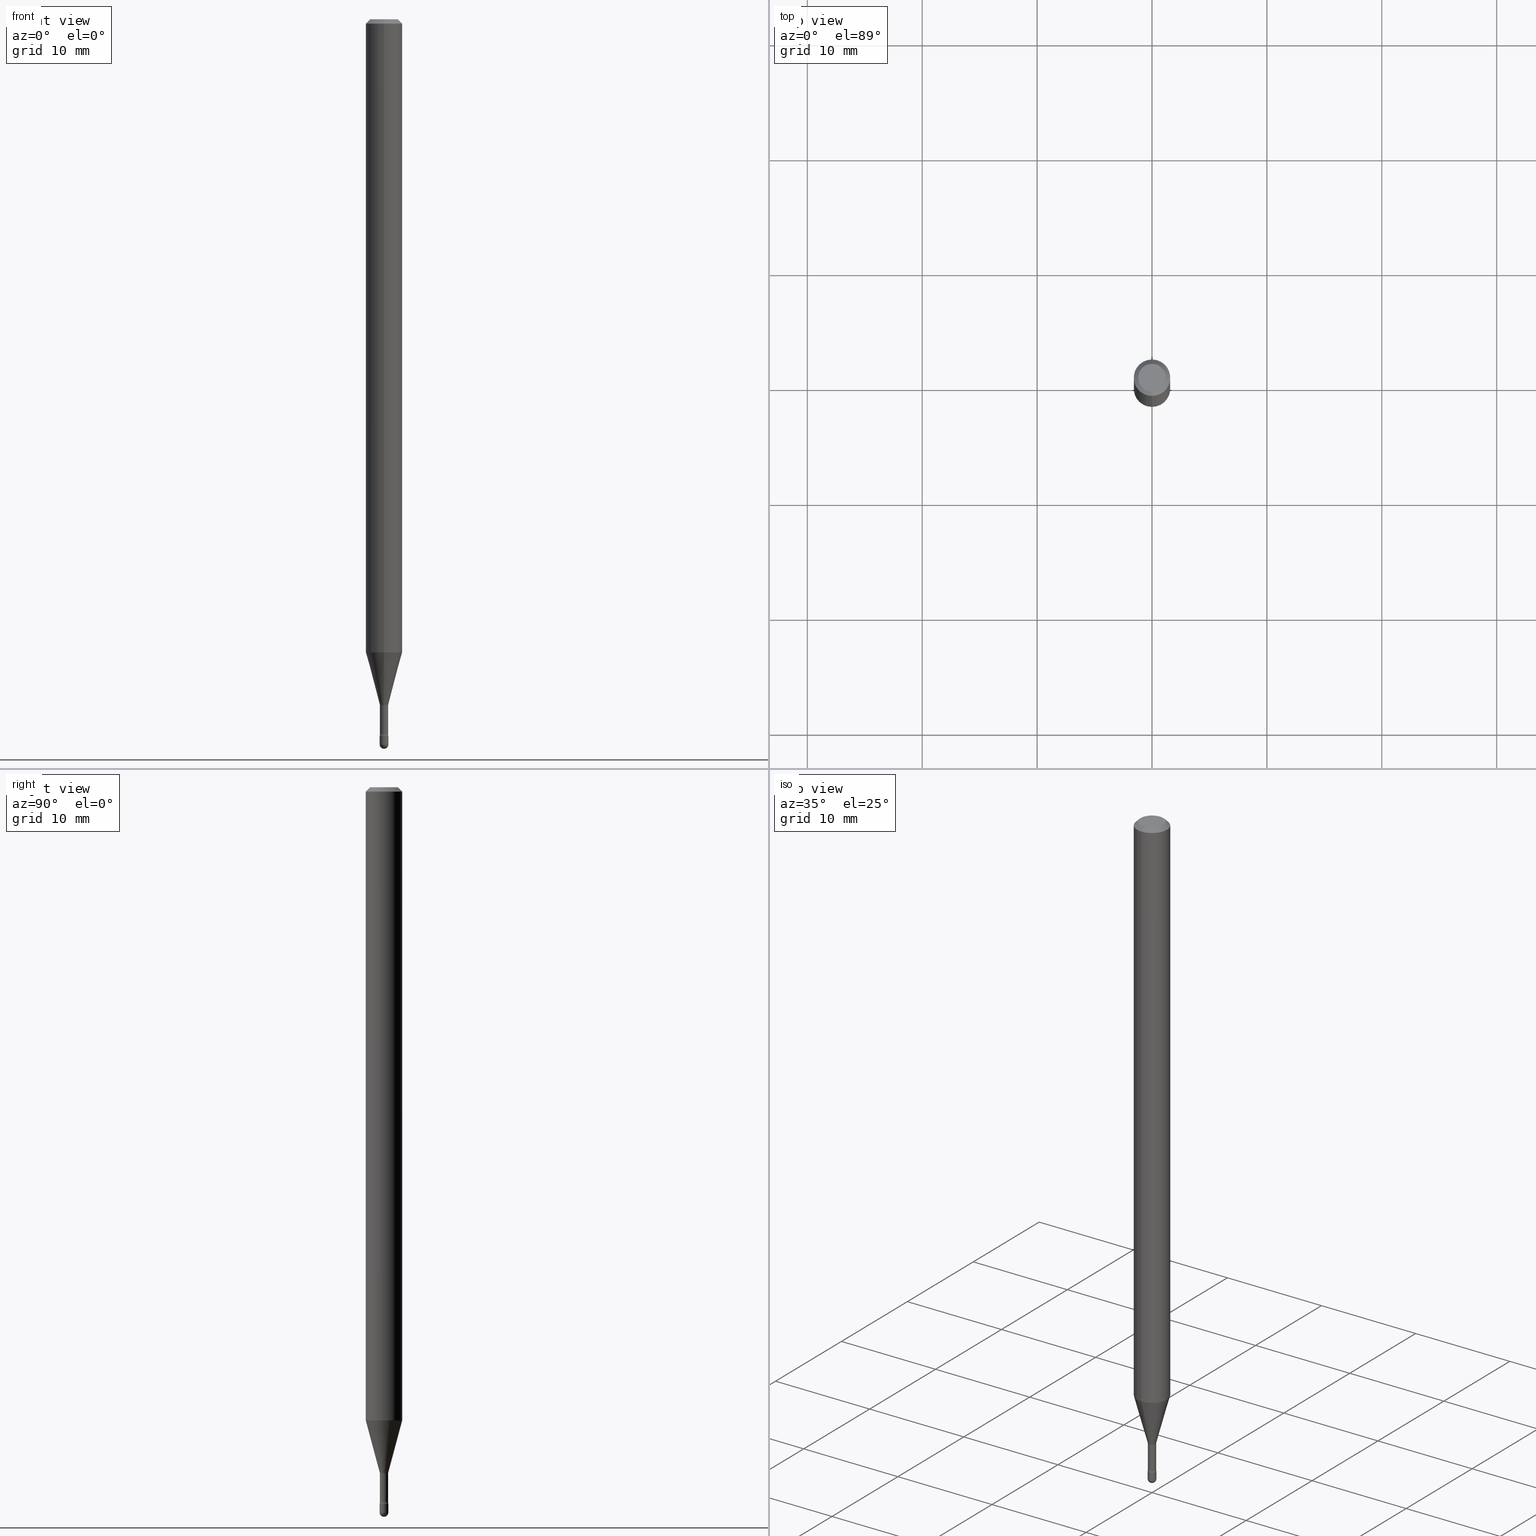
[diagram: canonical four-view strip — front | top / right | iso, engineering-drawing reading convention]
A machine part, canonical four-view strip (front | top / right | iso — engineering-drawing reading convention). The complete STEP part file that produces these views, byte-faithful:
ISO-10303-21;
HEADER;
FILE_DESCRIPTION (( 'STEP AP203' ),
    '1' );
FILE_NAME ('03836.STEP',
    '2024-04-09T20:40:45',
    ( '' ),
    ( '' ),
    'SwSTEP 2.0',
    'SolidWorks 2023',
    '' );
FILE_SCHEMA (( 'CONFIG_CONTROL_DESIGN' ));
ENDSEC;

DATA;
#1 = AXIS2_PLACEMENT_3D ( 'NONE', #218, #58, #466 ) ;
#2 = EDGE_LOOP ( 'NONE', ( #258, #566, #37, #4, #525 ) ) ;
#3 = DIRECTION ( 'NONE',  ( -6.982962677686265922E-15, -1.000000000000000000, 4.370956789862821150E-15 ) ) ;
#4 = ORIENTED_EDGE ( 'NONE', *, *, #523, .T. ) ;
#5 = EDGE_CURVE ( 'NONE', #432, #479, #7, .T. ) ;
#6 = ORIENTED_EDGE ( 'NONE', *, *, #230, .T. ) ;
#7 = CIRCLE ( 'NONE', #320, 0.01500000000000012434 ) ;
#8 = AXIS2_PLACEMENT_3D ( 'NONE', #539, #318, #186 ) ;
#9 = EDGE_LOOP ( 'NONE', ( #176, #226, #521, #394 ) ) ;
#10 = DIMENSIONAL_EXPONENTS ( 1.000000000000000000, 0.000000000000000000, 0.000000000000000000, 0.000000000000000000, 0.000000000000000000, 0.000000000000000000, 0.000000000000000000 ) ;
#11 = CARTESIAN_POINT ( 'NONE',  ( 5.742075338623130299E-29, -8.198481010283205471E-15, -2.348092501787273356 ) ) ;
#12 = DIRECTION ( 'NONE',  ( 1.000000000000000000, -6.982962677686204391E-15, 0.000000000000000000 ) ) ;
#13 = AXIS2_PLACEMENT_3D ( 'NONE', #252, #32, #457 ) ;
#14 = VECTOR ( 'NONE', #87, 39.37007874015748143 ) ;
#15 = DIRECTION ( 'NONE',  ( 7.105427357601001859E-15, 1.000000000000000000, 0.000000000000000000 ) ) ;
#16 = LINE ( 'NONE', #100, #439 ) ;
#17 = PERSON_AND_ORGANIZATION_ROLE ( 'design_owner' ) ;
#18 = EDGE_CURVE ( 'NONE', #41, #344, #147, .T. ) ;
#19 = CARTESIAN_POINT ( 'NONE',  ( 2.739537045417235021E-16, 0.01461111260565578149, -2.348092501787273356 ) ) ;
#20 = CARTESIAN_POINT ( 'NONE',  ( -1.047444401652340571E-16, -0.01500000000000858633, -2.455000000000000071 ) ) ;
#21 = DIRECTION ( 'NONE',  ( -2.445421266092581423E-29, 3.491549418961498749E-15, 1.000000000000000000 ) ) ;
#22 = CIRCLE ( 'NONE', #99, 0.04749999999999999362 ) ;
#23 = DIRECTION ( 'NONE',  ( -6.982962677686265133E-15, -1.000000000000000000, 0.000000000000000000 ) ) ;
#24 = LINE ( 'NONE', #514, #265 ) ;
#25 = APPROVAL_ROLE ( '' ) ;
#26 = DIRECTION ( 'NONE',  ( -2.445421266092581423E-29, 3.491549418961498749E-15, 1.000000000000000000 ) ) ;
#27 = EDGE_CURVE ( 'NONE', #132, #300, #565, .T. ) ;
#28 = FACE_OUTER_BOUND ( 'NONE', #269, .T. ) ;
#29 = FACE_OUTER_BOUND ( 'NONE', #522, .T. ) ;
#30 = CARTESIAN_POINT ( 'NONE',  ( -0.01499999999999999771, -8.517377496578554084E-15, -2.484999999999999432 ) ) ;
#31 = FACE_OUTER_BOUND ( 'NONE', #124, .T. ) ;
#32 = DIRECTION ( 'NONE',  ( -2.445421266092581423E-29, 3.491549418961498749E-15, 1.000000000000000000 ) ) ;
#33 = PERSON_AND_ORGANIZATION ( #271, #50 ) ;
#34 = CIRCLE ( 'NONE', #401, 0.01410000000000000142 ) ;
#35 = TOROIDAL_SURFACE ( 'NONE', #266, 0.02909999999999999740, 0.01500000000000002373 ) ;
#36 = LENGTH_MEASURE_WITH_UNIT ( LENGTH_MEASURE( 0.02539999999999999897 ), #509 );
#37 = ORIENTED_EDGE ( 'NONE', *, *, #282, .T. ) ;
#38 = CARTESIAN_POINT ( 'NONE',  ( 6.003509208257288079E-29, -8.571753823550479726E-15, -2.455000000000000071 ) ) ;
#39 = EDGE_CURVE ( 'NONE', #344, #41, #343, .T. ) ;
#40 = DIRECTION ( 'NONE',  ( 1.000000000000000000, -6.982962677686268288E-15, 0.000000000000000000 ) ) ;
#41 = VERTEX_POINT ( 'NONE', #558 ) ;
#42 = ORIENTED_EDGE ( 'NONE', *, *, #144, .T. ) ;
#43 = ORIENTED_EDGE ( 'NONE', *, *, #225, .F. ) ;
#44 = EDGE_LOOP ( 'NONE', ( #91, #475 ) ) ;
#45 = AXIS2_PLACEMENT_3D ( 'NONE', #97, #435, #355 ) ;
#46 = VERTEX_POINT ( 'NONE', #120 ) ;
#47 = ORIENTED_EDGE ( 'NONE', *, *, #201, .T. ) ;
#48 = ORIENTED_EDGE ( 'NONE', *, *, #18, .T. ) ;
#49 = AXIS2_PLACEMENT_3D ( 'NONE', #229, #325, #235 ) ;
#50 = ORGANIZATION ( 'UNSPECIFIED', 'UNSPECIFIED', '' ) ;
#51 = ORIENTED_EDGE ( 'NONE', *, *, #351, .F. ) ;
#52 = DIRECTION ( 'NONE',  ( 6.982962677686265922E-15, 1.000000000000000000, 0.000000000000000000 ) ) ;
#53 = CARTESIAN_POINT ( 'NONE',  ( 5.742075338623130299E-29, -8.198481010283205471E-15, -2.348092501787273356 ) ) ;
#54 = ADVANCED_FACE ( 'NONE', ( #379 ), #259, .T. ) ;
#55 = LINE ( 'NONE', #493, #433 ) ;
#56 = DIRECTION ( 'NONE',  ( -2.445421266092581423E-29, 3.491549418961498749E-15, 1.000000000000000000 ) ) ;
#57 = AXIS2_PLACEMENT_3D ( 'NONE', #38, #374, #547 ) ;
#58 = DIRECTION ( 'NONE',  ( -1.000000000000000000, 6.982962677686265922E-15, -4.883557194083112340E-29 ) ) ;
#59 = VECTOR ( 'NONE', #206, 39.37007874015748143 ) ;
#60 = CC_DESIGN_PERSON_AND_ORGANIZATION_ASSIGNMENT ( #205, #375, ( #449 ) ) ;
#61 = DIRECTION ( 'NONE',  ( 2.445421266092581142E-29, -3.491549418961498749E-15, -1.000000000000000000 ) ) ;
#62 = ADVANCED_FACE ( 'NONE', ( #299 ), #248, .T. ) ;
#63 = UNCERTAINTY_MEASURE_WITH_UNIT (LENGTH_MEASURE( 1.000000000000000082E-05 ), #294, 'distance_accuracy_value', 'NONE');
#64 = PERSON_AND_ORGANIZATION ( #271, #50 ) ;
#65 = DIRECTION ( 'NONE',  ( -2.445468806185136597E-29, 3.491481338843145583E-15, 1.000000000000000000 ) ) ;
#66 = CARTESIAN_POINT ( 'NONE',  ( 0.000000000000000000, 0.000000000000000000, 0.000000000000000000 ) ) ;
#67 = ADVANCED_FACE ( 'NONE', ( #476 ), #165, .T. ) ;
#68 = DATE_AND_TIME ( #125, #220 ) ;
#69 = DIRECTION ( 'NONE',  ( -6.982962677686265922E-15, -1.000000000000000000, 3.491549418961498749E-15 ) ) ;
#70 = APPROVAL ( #500, 'UNSPECIFIED' ) ;
#71 = DIRECTION ( 'NONE',  ( -2.445421266092581423E-29, 3.491549418961498749E-15, 1.000000000000000000 ) ) ;
#72 = CIRCLE ( 'NONE', #386, 0.01499999999999999771 ) ;
#73 = DIRECTION ( 'NONE',  ( 1.000000000000000000, -6.982962677686265922E-15, 4.876176775795935793E-29 ) ) ;
#74 = APPROVAL ( #210, 'UNSPECIFIED' ) ;
#75 = DIRECTION ( 'NONE',  ( -1.000000000000000000, 6.982962677686265922E-15, -4.883557194083113462E-29 ) ) ;
#76 = CARTESIAN_POINT ( 'NONE',  ( 5.991110947347057702E-29, -8.553718623887254041E-15, -2.449882383367230521 ) ) ;
#77 = CARTESIAN_POINT ( 'NONE',  ( 1.047444401653551842E-16, 0.01499999999999138481, -2.484999999999999432 ) ) ;
#78 = CARTESIAN_POINT ( 'NONE',  ( -1.065814103639546884E-16, -0.01500000000000873551, -2.484999999999999432 ) ) ;
#79 = CARTESIAN_POINT ( 'NONE',  ( 6.076989983370063053E-29, -8.676331127025215102E-15, -2.484999999999999432 ) ) ;
#80 = DIRECTION ( 'NONE',  ( -6.982962677686267499E-15, -1.000000000000000000, 0.000000000000000000 ) ) ;
#81 = DATE_AND_TIME ( #204, #368 ) ;
#82 =( NAMED_UNIT ( * ) SI_UNIT ( $, .STERADIAN. ) SOLID_ANGLE_UNIT ( ) );
#83 = DIRECTION ( 'NONE',  ( -2.445421266092581423E-29, 3.491549418961498749E-15, 1.000000000000000000 ) ) ;
#84 = AXIS2_PLACEMENT_3D ( 'NONE', #530, #184, #314 ) ;
#85 = SHAPE_DEFINITION_REPRESENTATION ( #246, #400 ) ;
#86 = AXIS2_PLACEMENT_3D ( 'NONE', #456, #241, #23 ) ;
#87 = DIRECTION ( 'NONE',  ( 4.937700262164548042E-15, 0.7071067811865451302, -0.7071067811865499042 ) ) ;
#88 = ORIENTED_EDGE ( 'NONE', *, *, #390, .T. ) ;
#89 = DIRECTION ( 'NONE',  ( 1.000000000000000000, -6.982962677686266711E-15, 4.876176775795935793E-29 ) ) ;
#90 = ORIENTED_EDGE ( 'NONE', *, *, #445, .T. ) ;
#91 = ORIENTED_EDGE ( 'NONE', *, *, #349, .T. ) ;
#92 = ORIENTED_EDGE ( 'NONE', *, *, #282, .F. ) ;
#93 = VERTEX_POINT ( 'NONE', #382 ) ;
#94 = EDGE_CURVE ( 'NONE', #385, #300, #195, .T. ) ;
#95 = CIRCLE ( 'NONE', #107, 0.01499999999999999944 ) ;
#96 = CIRCLE ( 'NONE', #143, 0.01499999999999999944 ) ;
#97 = CARTESIAN_POINT ( 'NONE',  ( 0.000000000000000000, 0.000000000000000000, 0.000000000000000000 ) ) ;
#98 = EDGE_LOOP ( 'NONE', ( #178, #486, #135, #384 ) ) ;
#99 = AXIS2_PLACEMENT_3D ( 'NONE', #414, #327, #198 ) ;
#100 = CARTESIAN_POINT ( 'NONE',  ( 1.038181992333310906E-16, 0.01461111260565578149, -2.348092501787273356 ) ) ;
#101 = APPROVAL ( #339, 'UNSPECIFIED' ) ;
#102 = LINE ( 'NONE', #495, #431 ) ;
#103 = DESIGN_CONTEXT ( 'detailed design', #373, 'design' ) ;
#104 = EDGE_CURVE ( 'NONE', #262, #515, #34, .T. ) ;
#105 = DIRECTION ( 'NONE',  ( 1.000000000000000000, -7.105427357601001070E-15, 4.926316342283072685E-29 ) ) ;
#106 = CLOSED_SHELL ( 'NONE', ( #263, #519, #54, #404, #67 ) ) ;
#107 = AXIS2_PLACEMENT_3D ( 'NONE', #232, #358, #362 ) ;
#108 = AXIS2_PLACEMENT_3D ( 'NONE', #376, #26, #337 ) ;
#109 = DIRECTION ( 'NONE',  ( -1.000000000000000000, 6.982962677686265922E-15, -4.883557194083113462E-29 ) ) ;
#110 = DIRECTION ( 'NONE',  ( 2.445421266092581423E-29, -3.491549418961498749E-15, -1.000000000000000000 ) ) ;
#111 = DIRECTION ( 'NONE',  ( -6.982962677686265922E-15, -1.000000000000000000, 3.491549418961497960E-15 ) ) ;
#112 = CARTESIAN_POINT ( 'NONE',  ( 1.047444401653540256E-16, 0.01499999999999142818, -2.455000000000000071 ) ) ;
#113 = DIRECTION ( 'NONE',  ( 2.445421266092581423E-29, -3.491549418961498749E-15, -1.000000000000000000 ) ) ;
#114 = AXIS2_PLACEMENT_3D ( 'NONE', #398, #56, #145 ) ;
#115 = CARTESIAN_POINT ( 'NONE',  ( 6.003625919184510659E-29, -8.571586686859923311E-15, -2.455000000000000071 ) ) ;
#116 = TOROIDAL_SURFACE ( 'NONE', #197, 0.02910000000000001474, 0.01500000000000002373 ) ;
#117 = COORDINATED_UNIVERSAL_TIME_OFFSET ( 5, 0, .BEHIND. ) ;
#118 = CARTESIAN_POINT ( 'NONE',  ( 4.364351673553919652E-16, 0.06249999999999995143, -0.01500000000000030129 ) ) ;
#119 = DIRECTION ( 'NONE',  ( 1.000000000000000000, -6.982962677686266711E-15, 4.876176775795935793E-29 ) ) ;
#120 = CARTESIAN_POINT ( 'NONE',  ( -4.364351673553385199E-16, -0.06250000000000757727, -2.169368740913666826 ) ) ;
#121 = CALENDAR_DATE ( 2024, 9, 4 ) ;
#122 = FACE_OUTER_BOUND ( 'NONE', #347, .T. ) ;
#123 = FACE_OUTER_BOUND ( 'NONE', #224, .T. ) ;
#124 = EDGE_LOOP ( 'NONE', ( #264, #561, #222, #564 ) ) ;
#125 = CALENDAR_DATE ( 2024, 9, 4 ) ;
#126 = EDGE_CURVE ( 'NONE', #313, #515, #499, .T. ) ;
#127 = ORIENTED_EDGE ( 'NONE', *, *, #425, .F. ) ;
#128 = CARTESIAN_POINT ( 'NONE',  ( 0.01499999999999999944, -8.676331127025216680E-15, -2.455000000000000071 ) ) ;
#129 = AXIS2_PLACEMENT_3D ( 'NONE', #444, #109, #52 ) ;
#130 = ORIENTED_EDGE ( 'NONE', *, *, #168, .T. ) ;
#131 = DIRECTION ( 'NONE',  ( 6.982962677686265922E-15, 1.000000000000000000, 0.000000000000000000 ) ) ;
#132 = VERTEX_POINT ( 'NONE', #472 ) ;
#133 = VERTEX_POINT ( 'NONE', #128 ) ;
#134 = ORIENTED_EDGE ( 'NONE', *, *, #27, .F. ) ;
#135 = ORIENTED_EDGE ( 'NONE', *, *, #94, .T. ) ;
#136 = ORIENTED_EDGE ( 'NONE', *, *, #201, .F. ) ;
#137 = AXIS2_PLACEMENT_3D ( 'NONE', #76, #158, #453 ) ;
#138 = LOCAL_TIME ( 16, 40, 45.00000000000000000, #296 ) ;
#139 = ORIENTED_EDGE ( 'NONE', *, *, #18, .F. ) ;
#140 = CLOSED_SHELL ( 'NONE', ( #508, #331, #260, #469, #488, #304, #470, #62, #290, #395, #529, #423, #545, #207 ) ) ;
#141 = CIRCLE ( 'NONE', #353, 0.06250000000000000000 ) ;
#142 = DIRECTION ( 'NONE',  ( -2.445468806185136597E-29, 3.491481338843145583E-15, 1.000000000000000000 ) ) ;
#143 = AXIS2_PLACEMENT_3D ( 'NONE', #446, #501, #40 ) ;
#144 = EDGE_CURVE ( 'NONE', #41, #46, #24, .T. ) ;
#145 = DIRECTION ( 'NONE',  ( -6.982962677686265133E-15, -1.000000000000000000, 3.491549418961499932E-15 ) ) ;
#146 = DIRECTION ( 'NONE',  ( 1.839019923739599526E-15, 0.2588190451025248473, 0.9659258262890673130 ) ) ;
#147 = CIRCLE ( 'NONE', #84, 0.01461111260566397979 ) ;
#148 = AXIS2_PLACEMENT_3D ( 'NONE', #532, #105, #15 ) ;
#149 = APPROVAL_ROLE ( '' ) ;
#150 = DIRECTION ( 'NONE',  ( -2.445468806185136877E-29, 3.491481338843145188E-15, 1.000000000000000000 ) ) ;
#151 = EDGE_CURVE ( 'NONE', #350, #441, #517, .T. ) ;
#152 = CARTESIAN_POINT ( 'NONE',  ( -4.364351673553916201E-16, -0.06250000000000000000, 6.962952375763397104E-16 ) ) ;
#153 = PERSON_AND_ORGANIZATION ( #271, #50 ) ;
#154 = DIRECTION ( 'NONE',  ( -2.445421266092581423E-29, 3.491549418961498749E-15, 1.000000000000000000 ) ) ;
#155 = EDGE_CURVE ( 'NONE', #515, #262, #272, .T. ) ;
#156 = DIRECTION ( 'NONE',  ( -1.000000000000000000, 6.982962677686265922E-15, -4.883557194083112340E-29 ) ) ;
#157 = DATE_AND_TIME ( #463, #440 ) ;
#158 = DIRECTION ( 'NONE',  ( -2.445421266092581423E-29, 3.491549418961498749E-15, 1.000000000000000000 ) ) ;
#159 = CIRCLE ( 'NONE', #474, 0.06250000000000000000 ) ;
#160 = CARTESIAN_POINT ( 'NONE',  ( 5.751680975676666487E-29, -8.211876079859469508E-15, -2.351974787463811278 ) ) ;
#161 = AXIS2_PLACEMENT_3D ( 'NONE', #412, #163, #254 ) ;
#162 = PERSON_AND_ORGANIZATION ( #271, #50 ) ;
#163 = DIRECTION ( 'NONE',  ( -2.445421266092581423E-29, 3.491549418961498749E-15, 1.000000000000000000 ) ) ;
#164 = CARTESIAN_POINT ( 'NONE',  ( 4.440892098500625669E-16, 0.06250000000000000000, 2.598515602061524161E-16 ) ) ;
#165 = CYLINDRICAL_SURFACE ( 'NONE', #310, 0.01499999999999999771 ) ;
#166 = PERSON_AND_ORGANIZATION ( #271, #50 ) ;
#167 = EDGE_CURVE ( 'NONE', #288, #93, #22, .T. ) ;
#168 = EDGE_CURVE ( 'NONE', #344, #515, #181, .T. ) ;
#169 = VERTEX_POINT ( 'NONE', #77 ) ;
#170 = CARTESIAN_POINT ( 'NONE',  ( 1.001865257421740747E-16, 0.01409999999999999448, 4.288425520838889545E-16 ) ) ;
#171 = ORIENTED_EDGE ( 'NONE', *, *, #94, .F. ) ;
#172 = AXIS2_PLACEMENT_3D ( 'NONE', #208, #257, #243 ) ;
#173 = PRODUCT_DEFINITION ( 'UNKNOWN', '', #449, #103 ) ;
#174 = CIRCLE ( 'NONE', #57, 0.01499999999999999944 ) ;
#175 = EDGE_LOOP ( 'NONE', ( #261, #482 ) ) ;
#176 = ORIENTED_EDGE ( 'NONE', *, *, #126, .F. ) ;
#177 = VERTEX_POINT ( 'NONE', #369 ) ;
#178 = ORIENTED_EDGE ( 'NONE', *, *, #390, .F. ) ;
#179 = EDGE_CURVE ( 'NONE', #46, #350, #424, .T. ) ;
#180 = EDGE_LOOP ( 'NONE', ( #270, #6, #548, #471 ) ) ;
#181 = CIRCLE ( 'NONE', #172, 0.01500000000000001853 ) ;
#182 = CIRCLE ( 'NONE', #108, 0.01409999999999998928 ) ;
#183 = ORIENTED_EDGE ( 'NONE', *, *, #179, .T. ) ;
#184 = DIRECTION ( 'NONE',  ( -2.445421266092581423E-29, 3.491549418961498749E-15, 1.000000000000000000 ) ) ;
#185 = EDGE_LOOP ( 'NONE', ( #305, #487, #42, #520 ) ) ;
#186 = DIRECTION ( 'NONE',  ( 1.000000000000000000, -6.982962677686204391E-15, 0.000000000000000000 ) ) ;
#187 = CIRCLE ( 'NONE', #8, 0.01499999999999999771 ) ;
#188 = CARTESIAN_POINT ( 'NONE',  ( 3.668131899138892453E-31, -5.237324128442276818E-17, -0.01500000000000008271 ) ) ;
#189 = VECTOR ( 'NONE', #213, 39.37007874015748143 ) ;
#190 = EDGE_CURVE ( 'NONE', #300, #132, #174, .T. ) ;
#191 = CARTESIAN_POINT ( 'NONE',  ( 4.440892098501160615E-16, 0.06249999999999995837, -0.01500000000000030129 ) ) ;
#192 = FACE_OUTER_BOUND ( 'NONE', #98, .T. ) ;
#193 = CARTESIAN_POINT ( 'NONE',  ( 6.003509208257288079E-29, -8.571753823550479726E-15, -2.455000000000000071 ) ) ;
#194 = DIRECTION ( 'NONE',  ( 6.982962677686265922E-15, 1.000000000000000000, -3.491549418961498749E-15 ) ) ;
#195 = CIRCLE ( 'NONE', #490, 0.01500000000000001853 ) ;
#196 = DIRECTION ( 'NONE',  ( 1.000000000000000000, -6.982962677686204391E-15, 0.000000000000000000 ) ) ;
#197 = AXIS2_PLACEMENT_3D ( 'NONE', #367, #365, #281 ) ;
#198 = DIRECTION ( 'NONE',  ( -6.982962677686266711E-15, -1.000000000000000000, 3.491549418961498749E-15 ) ) ;
#199 = DATE_TIME_ROLE ( 'creation_date' ) ;
#200 = DIRECTION ( 'NONE',  ( -6.982962677686265922E-15, -1.000000000000000000, 3.491549418961497960E-15 ) ) ;
#201 = EDGE_CURVE ( 'NONE', #441, #350, #159, .T. ) ;
#202 = CARTESIAN_POINT ( 'NONE',  ( 2.023207162631325766E-45, -2.889366080516310070E-31, -8.274379826592361191E-17 ) ) ;
#203 = DIRECTION ( 'NONE',  ( -2.445421266092581423E-29, 3.491549418961498749E-15, 1.000000000000000000 ) ) ;
#204 = CALENDAR_DATE ( 2024, 9, 4 ) ;
#205 = PERSON_AND_ORGANIZATION ( #271, #50 ) ;
#206 = DIRECTION ( 'NONE',  ( -2.445468806185136877E-29, 3.491481338843145188E-15, 1.000000000000000000 ) ) ;
#207 = ADVANCED_FACE ( 'NONE', ( #29 ), #410, .F. ) ;
#208 = CARTESIAN_POINT ( 'NONE',  ( 2.067679361062465992E-16, 0.02909999999999178522, -2.351974787463811278 ) ) ;
#209 = CIRCLE ( 'NONE', #323, 0.01499999999999999771 ) ;
#210 = APPROVAL_STATUS ( 'not_yet_approved' ) ;
#211 = ORIENTED_EDGE ( 'NONE', *, *, #497, .F. ) ;
#212 = CARTESIAN_POINT ( 'NONE',  ( -1.169113584055446105E-44, 1.669184350826100908E-30, 4.780733988912460139E-16 ) ) ;
#213 = DIRECTION ( 'NONE',  ( -4.851104656540964275E-15, -0.7071067811865500152, -0.7071067811865450192 ) ) ;
#214 = ORIENTED_EDGE ( 'NONE', *, *, #437, .T. ) ;
#215 = EDGE_CURVE ( 'NONE', #177, #46, #377, .T. ) ;
#216 = ORIENTED_EDGE ( 'NONE', *, *, #27, .T. ) ;
#217 = AXIS2_PLACEMENT_3D ( 'NONE', #193, #366, #443 ) ;
#218 = CARTESIAN_POINT ( 'NONE',  ( -2.032042139206128241E-16, -0.02910000000000820958, -2.351974787463811278 ) ) ;
#219 = VECTOR ( 'NONE', #341, 39.37007874015748143 ) ;
#220 = LOCAL_TIME ( 16, 40, 45.00000000000000000, #511 ) ;
#221 = ORIENTED_EDGE ( 'NONE', *, *, #497, .T. ) ;
#222 = ORIENTED_EDGE ( 'NONE', *, *, #104, .F. ) ;
#223 = ORIENTED_EDGE ( 'NONE', *, *, #312, .F. ) ;
#224 = EDGE_LOOP ( 'NONE', ( #356, #214, #484, #392, #90 ) ) ;
#225 = EDGE_CURVE ( 'NONE', #41, #262, #240, .T. ) ;
#226 = ORIENTED_EDGE ( 'NONE', *, *, #399, .T. ) ;
#227 = DIRECTION ( 'NONE',  ( 6.982962677686265922E-15, 1.000000000000000000, 0.000000000000000000 ) ) ;
#228 = DIRECTION ( 'NONE',  ( -2.445421266092581423E-29, 3.491549418961498749E-15, 1.000000000000000000 ) ) ;
#229 = CARTESIAN_POINT ( 'NONE',  ( 5.990994479711803696E-29, -8.553885412169865933E-15, -2.449882383367230521 ) ) ;
#230 = EDGE_CURVE ( 'NONE', #177, #441, #557, .T. ) ;
#231 = VECTOR ( 'NONE', #546, 39.37007874015748143 ) ;
#232 = CARTESIAN_POINT ( 'NONE',  ( 6.003625919184510659E-29, -8.571586686859923311E-15, -2.455000000000000071 ) ) ;
#233 = CONICAL_SURFACE ( 'NONE', #555, 0.01461111260566397979, 0.2617993877991501295 ) ;
#234 = CARTESIAN_POINT ( 'NONE',  ( 6.076989983370064174E-29, -8.676331127025216680E-15, -2.484999999999999876 ) ) ;
#235 = DIRECTION ( 'NONE',  ( -6.982962677686265922E-15, -1.000000000000000000, 0.000000000000000000 ) ) ;
#236 = EDGE_CURVE ( 'NONE', #46, #177, #141, .T. ) ;
#237 = CARTESIAN_POINT ( 'NONE',  ( 3.668131899138892453E-31, -5.237324128442276818E-17, -0.01500000000000008271 ) ) ;
#238 = COORDINATED_UNIVERSAL_TIME_OFFSET ( 5, 0, .BEHIND. ) ;
#239 = CARTESIAN_POINT ( 'NONE',  ( -1.169113584055446105E-44, 1.669184350826100908E-30, 4.780733988912460139E-16 ) ) ;
#240 = CIRCLE ( 'NONE', #1, 0.01500000000000001853 ) ;
#241 = DIRECTION ( 'NONE',  ( -2.445421266092581423E-29, 3.491549418961498749E-15, 1.000000000000000000 ) ) ;
#242 = CONICAL_SURFACE ( 'NONE', #485, 0.06250000000000000000, 0.7853981633974483900 ) ;
#243 = DIRECTION ( 'NONE',  ( 7.105427357601005014E-15, 1.000000000000000000, 0.000000000000000000 ) ) ;
#244 = FACE_OUTER_BOUND ( 'NONE', #180, .T. ) ;
#245 = CARTESIAN_POINT ( 'NONE',  ( 5.305020453026768105E-29, -7.574458166850352886E-15, -2.169368740913666826 ) ) ;
#246 = PRODUCT_DEFINITION_SHAPE ( 'NONE', 'NONE',  #173 ) ;
#247 = CC_DESIGN_PERSON_AND_ORGANIZATION_ASSIGNMENT ( #289, #249, ( #449 ) ) ;
#248 = CYLINDRICAL_SURFACE ( 'NONE', #315, 0.06250000000000000000 ) ;
#249 = PERSON_AND_ORGANIZATION_ROLE ( 'creator' ) ;
#250 = DIRECTION ( 'NONE',  ( -2.445421266092581423E-29, 3.491549418961498749E-15, 1.000000000000000000 ) ) ;
#251 = FACE_OUTER_BOUND ( 'NONE', #436, .T. ) ;
#252 = CARTESIAN_POINT ( 'NONE',  ( 5.751569162577582727E-29, -8.212036202581364212E-15, -2.351974787463811278 ) ) ;
#253 = PERSON_AND_ORGANIZATION_ROLE ( 'classification_officer' ) ;
#254 = DIRECTION ( 'NONE',  ( -6.982962677686265133E-15, -1.000000000000000000, 3.491549418961499932E-15 ) ) ;
#255 = ORIENTED_EDGE ( 'NONE', *, *, #215, .T. ) ;
#256 = AXIS2_PLACEMENT_3D ( 'NONE', #319, #496, #227 ) ;
#257 = DIRECTION ( 'NONE',  ( 1.000000000000000000, -7.105427357601001070E-15, 4.926316342283072685E-29 ) ) ;
#258 = ORIENTED_EDGE ( 'NONE', *, *, #437, .F. ) ;
#259 = PLANE ( 'NONE',  #345 ) ;
#260 = ADVANCED_FACE ( 'NONE', ( #28 ), #503, .F. ) ;
#261 = ORIENTED_EDGE ( 'NONE', *, *, #312, .T. ) ;
#262 = VERTEX_POINT ( 'NONE', #510 ) ;
#263 = ADVANCED_FACE ( 'NONE', ( #123 ), #335, .T. ) ;
#264 = ORIENTED_EDGE ( 'NONE', *, *, #562, .T. ) ;
#265 = VECTOR ( 'NONE', #507, 39.37007874015749564 ) ;
#266 = AXIS2_PLACEMENT_3D ( 'NONE', #559, #329, #505 ) ;
#267 = ORIENTED_EDGE ( 'NONE', *, *, #104, .T. ) ;
#268 = ORIENTED_EDGE ( 'NONE', *, *, #39, .F. ) ;
#269 = EDGE_LOOP ( 'NONE', ( #477, #88, #216, #171 ) ) ;
#270 = ORIENTED_EDGE ( 'NONE', *, *, #236, .T. ) ;
#271 = PERSON ( 'UNSPECIFIED', 'UNSPECIFIED', 'UNSPECIFIED', ('UNSPECIFIED'), ('UNSPECIFIED'), ('UNSPECIFIED') ) ;
#272 = CIRCLE ( 'NONE', #13, 0.01410000000000000142 ) ;
#273 = CC_DESIGN_APPROVAL ( #74, ( #378 ) ) ;
#274 = ORIENTED_EDGE ( 'NONE', *, *, #225, .T. ) ;
#275 = CARTESIAN_POINT ( 'NONE',  ( 6.076989983370063053E-29, -8.676331127025215102E-15, -2.484999999999999432 ) ) ;
#276 = DIRECTION ( 'NONE',  ( 1.000000000000000000, -6.982962677686204391E-15, 0.000000000000000000 ) ) ;
#277 = AXIS2_PLACEMENT_3D ( 'NONE', #202, #154, #287 ) ;
#278 = PLANE ( 'NONE',  #540 ) ;
#279 = AXIS2_PLACEMENT_3D ( 'NONE', #239, #250, #200 ) ;
#280 = ORIENTED_EDGE ( 'NONE', *, *, #144, .F. ) ;
#281 = DIRECTION ( 'NONE',  ( -6.982962677686265922E-15, -1.000000000000000000, 3.491549418961498749E-15 ) ) ;
#282 = EDGE_CURVE ( 'NONE', #479, #428, #72, .T. ) ;
#283 = COORDINATED_UNIVERSAL_TIME_OFFSET ( 5, 0, .BEHIND. ) ;
#284 = DIRECTION ( 'NONE',  ( 6.982962677686265922E-15, 1.000000000000000000, -3.483106191921935554E-15 ) ) ;
#285 = FACE_OUTER_BOUND ( 'NONE', #354, .T. ) ;
#286 = CARTESIAN_POINT ( 'NONE',  ( 6.076989983370064174E-29, -8.676331127025216680E-15, -2.484999999999999876 ) ) ;
#287 = DIRECTION ( 'NONE',  ( -6.982962677686266711E-15, -1.000000000000000000, 3.491549418961498749E-15 ) ) ;
#288 = VERTEX_POINT ( 'NONE', #413 ) ;
#289 = PERSON_AND_ORGANIZATION ( #271, #50 ) ;
#290 = ADVANCED_FACE ( 'NONE', ( #251 ), #333, .T. ) ;
#291 = DIRECTION ( 'NONE',  ( -2.445421266092581142E-29, 3.491549418961498749E-15, 1.000000000000000000 ) ) ;
#292 = DIRECTION ( 'NONE',  ( -6.982962677686265133E-15, -1.000000000000000000, 0.000000000000000000 ) ) ;
#293 = DATE_AND_TIME ( #121, #138 ) ;
#294 =( CONVERSION_BASED_UNIT ( 'INCH', #36 ) LENGTH_UNIT ( ) NAMED_UNIT ( #10 ) );
#295 = CARTESIAN_POINT ( 'NONE',  ( 0.000000000000000000, 0.000000000000000000, 0.000000000000000000 ) ) ;
#296 = COORDINATED_UNIVERSAL_TIME_OFFSET ( 5, 0, .BEHIND. ) ;
#297 = ORIENTED_EDGE ( 'NONE', *, *, #230, .F. ) ;
#298 = CIRCLE ( 'NONE', #49, 0.01409999999999998928 ) ;
#299 = FACE_OUTER_BOUND ( 'NONE', #447, .T. ) ;
#300 = VERTEX_POINT ( 'NONE', #20 ) ;
#301 = MECHANICAL_CONTEXT ( 'NONE', #309, 'mechanical' ) ;
#302 = VERTEX_POINT ( 'NONE', #326 ) ;
#303 = ORIENTED_EDGE ( 'NONE', *, *, #236, .F. ) ;
#304 = ADVANCED_FACE ( 'NONE', ( #285 ), #483, .T. ) ;
#305 = ORIENTED_EDGE ( 'NONE', *, *, #405, .F. ) ;
#306 = ORIENTED_EDGE ( 'NONE', *, *, #167, .F. ) ;
#307 = CC_DESIGN_PERSON_AND_ORGANIZATION_ASSIGNMENT ( #64, #17, ( #442 ) ) ;
#308 = ORIENTED_EDGE ( 'NONE', *, *, #5, .T. ) ;
#309 = APPLICATION_CONTEXT ( 'configuration controlled 3d designs of mechanical parts and assemblies' ) ;
#310 = AXIS2_PLACEMENT_3D ( 'NONE', #295, #338, #89 ) ;
#311 = APPROVAL_PERSON_ORGANIZATION ( #166, #70, #149 ) ;
#312 = EDGE_CURVE ( 'NONE', #93, #288, #448, .T. ) ;
#313 = VERTEX_POINT ( 'NONE', #461 ) ;
#314 = DIRECTION ( 'NONE',  ( -6.982962677686265133E-15, -1.000000000000000000, 0.000000000000000000 ) ) ;
#315 = AXIS2_PLACEMENT_3D ( 'NONE', #212, #417, #111 ) ;
#316 = CIRCLE ( 'NONE', #491, 0.01499999999999999771 ) ;
#317 = DIRECTION ( 'NONE',  ( -2.445421266092581423E-29, 3.491549418961498749E-15, 1.000000000000000000 ) ) ;
#318 = DIRECTION ( 'NONE',  ( -2.445468806185136597E-29, 3.491481338843145583E-15, 1.000000000000000000 ) ) ;
#319 = CARTESIAN_POINT ( 'NONE',  ( 6.076989983370064174E-29, -8.676331127025216680E-15, -2.484999999999999876 ) ) ;
#320 = AXIS2_PLACEMENT_3D ( 'NONE', #234, #451, #408 ) ;
#321 = AXIS2_PLACEMENT_3D ( 'NONE', #542, #83, #467 ) ;
#322 = CARTESIAN_POINT ( 'NONE',  ( 0.01499999999999999771, -8.728703347107861787E-15, -2.484999999999999432 ) ) ;
#323 = AXIS2_PLACEMENT_3D ( 'NONE', #275, #142, #12 ) ;
#324 = APPROVAL_DATE_TIME ( #157, #70 ) ;
#325 = DIRECTION ( 'NONE',  ( -2.445421266092581423E-29, 3.491549418961498749E-15, 1.000000000000000000 ) ) ;
#326 = CARTESIAN_POINT ( 'NONE',  ( -0.01500000000000000291, -8.517377496578554084E-15, -2.455000000000000071 ) ) ;
#327 = DIRECTION ( 'NONE',  ( -2.445421266092581423E-29, 3.491549418961498749E-15, 1.000000000000000000 ) ) ;
#328 = APPROVAL_DATE_TIME ( #81, #101 ) ;
#329 = DIRECTION ( 'NONE',  ( -2.445421266092581423E-29, 3.491549418961498749E-15, 1.000000000000000000 ) ) ;
#330 = CARTESIAN_POINT ( 'NONE',  ( 3.668131899138892453E-31, -5.237324128442276818E-17, -0.01500000000000008271 ) ) ;
#331 = ADVANCED_FACE ( 'NONE', ( #31 ), #416, .T. ) ;
#332 = PERSON_AND_ORGANIZATION ( #271, #50 ) ;
#333 = CONICAL_SURFACE ( 'NONE', #527, 0.06250000000000000000, 0.7853981633974483900 ) ;
#334 = APPROVAL_PERSON_ORGANIZATION ( #153, #101, #25 ) ;
#335 = CYLINDRICAL_SURFACE ( 'NONE', #458, 0.01499999999999999771 ) ;
#336 = CARTESIAN_POINT ( 'NONE',  ( -2.032042139206105562E-16, -0.02910000000000856693, -2.449882383367230521 ) ) ;
#337 = DIRECTION ( 'NONE',  ( -6.982962677686265922E-15, -1.000000000000000000, 0.000000000000000000 ) ) ;
#338 = DIRECTION ( 'NONE',  ( -2.445468806185136597E-29, 3.491481338843145583E-15, 1.000000000000000000 ) ) ;
#339 = APPROVAL_STATUS ( 'not_yet_approved' ) ;
#340 = ORIENTED_EDGE ( 'NONE', *, *, #5, .F. ) ;
#341 = DIRECTION ( 'NONE',  ( -2.445421266092581423E-29, 3.491549418961498749E-15, 1.000000000000000000 ) ) ;
#342 = LINE ( 'NONE', #460, #59 ) ;
#343 = CIRCLE ( 'NONE', #554, 0.01461111260566397979 ) ;
#344 = VERTEX_POINT ( 'NONE', #19 ) ;
#345 = AXIS2_PLACEMENT_3D ( 'NONE', #115, #560, #73 ) ;
#346 = LOCAL_TIME ( 16, 40, 45.00000000000000000, #238 ) ;
#347 = EDGE_LOOP ( 'NONE', ( #268, #130, #526, #43 ) ) ;
#348 = ORIENTED_EDGE ( 'NONE', *, *, #533, .T. ) ;
#349 = EDGE_CURVE ( 'NONE', #133, #302, #95, .T. ) ;
#350 = VERTEX_POINT ( 'NONE', #538 ) ;
#351 = EDGE_CURVE ( 'NONE', #432, #169, #422, .T. ) ;
#352 = ORIENTED_EDGE ( 'NONE', *, *, #533, .F. ) ;
#353 = AXIS2_PLACEMENT_3D ( 'NONE', #245, #71, #551 ) ;
#354 = EDGE_LOOP ( 'NONE', ( #48, #381, #303, #280 ) ) ;
#355 = DIRECTION ( 'NONE',  ( 1.000000000000000000, 0.000000000000000000, 0.000000000000000000 ) ) ;
#356 = ORIENTED_EDGE ( 'NONE', *, *, #425, .T. ) ;
#357 = EDGE_LOOP ( 'NONE', ( #492, #134 ) ) ;
#358 = DIRECTION ( 'NONE',  ( -2.445468806185136597E-29, 3.491481338843145583E-15, 1.000000000000000000 ) ) ;
#359 = AXIS2_PLACEMENT_3D ( 'NONE', #552, #481, #3 ) ;
#360 = AXIS2_PLACEMENT_3D ( 'NONE', #286, #75, #131 ) ;
#361 = DIRECTION ( 'NONE',  ( -2.445421266092581423E-29, 3.491549418961498749E-15, 1.000000000000000000 ) ) ;
#362 = DIRECTION ( 'NONE',  ( 1.000000000000000000, -6.982962677686268288E-15, 0.000000000000000000 ) ) ;
#363 = EDGE_CURVE ( 'NONE', #385, #262, #102, .T. ) ;
#364 = EDGE_CURVE ( 'NONE', #513, #479, #187, .T. ) ;
#365 = DIRECTION ( 'NONE',  ( -2.445421266092581423E-29, 3.491549418961498749E-15, 1.000000000000000000 ) ) ;
#366 = DIRECTION ( 'NONE',  ( -2.445421266092581423E-29, 3.491549418961498749E-15, 1.000000000000000000 ) ) ;
#367 = CARTESIAN_POINT ( 'NONE',  ( 5.991110947347057702E-29, -8.553718623887254041E-15, -2.449882383367230521 ) ) ;
#368 = LOCAL_TIME ( 16, 40, 45.00000000000000000, #117 ) ;
#369 = CARTESIAN_POINT ( 'NONE',  ( 4.440892098501154699E-16, 0.06249999999999240885, -2.169368740913667271 ) ) ;
#370 = SPHERICAL_SURFACE ( 'NONE', #360, 0.01500000000000012434 ) ;
#371 = PRODUCT_RELATED_PRODUCT_CATEGORY ( 'detail', '', ( #442 ) ) ;
#372 = DIRECTION ( 'NONE',  ( -2.445468806185136597E-29, 3.491481338843145583E-15, 1.000000000000000000 ) ) ;
#373 = APPLICATION_CONTEXT ( 'configuration controlled 3d designs of mechanical parts and assemblies' ) ;
#374 = DIRECTION ( 'NONE',  ( -2.445421266092581423E-29, 3.491549418961498749E-15, 1.000000000000000000 ) ) ;
#375 = PERSON_AND_ORGANIZATION_ROLE ( 'design_supplier' ) ;
#376 = CARTESIAN_POINT ( 'NONE',  ( 5.990994479711803696E-29, -8.553885412169865933E-15, -2.449882383367230521 ) ) ;
#377 = CIRCLE ( 'NONE', #359, 0.06250000000000000000 ) ;
#378 = SECURITY_CLASSIFICATION ( '', '', #553 ) ;
#379 = FACE_OUTER_BOUND ( 'NONE', #44, .T. ) ;
#380 = APPROVAL_ROLE ( '' ) ;
#381 = ORIENTED_EDGE ( 'NONE', *, *, #405, .T. ) ;
#382 = CARTESIAN_POINT ( 'NONE',  ( 3.840629472727447874E-16, 0.04749999999999999362, -2.485923956665947867E-16 ) ) ;
#383 = CARTESIAN_POINT ( 'NONE',  ( 1.001865257422340651E-16, 0.01409999999999179097, -2.351974787463811278 ) ) ;
#384 = ORIENTED_EDGE ( 'NONE', *, *, #190, .T. ) ;
#385 = VERTEX_POINT ( 'NONE', #403 ) ;
#386 = AXIS2_PLACEMENT_3D ( 'NONE', #79, #372, #196 ) ;
#387 = EDGE_LOOP ( 'NONE', ( #340, #391, #524, #92 ) ) ;
#388 = APPROVAL_PERSON_ORGANIZATION ( #33, #74, #380 ) ;
#389 = EDGE_LOOP ( 'NONE', ( #51, #308, #434, #127 ) ) ;
#390 = EDGE_CURVE ( 'NONE', #313, #132, #393, .T. ) ;
#391 = ORIENTED_EDGE ( 'NONE', *, *, #351, .T. ) ;
#392 = ORIENTED_EDGE ( 'NONE', *, *, #523, .F. ) ;
#393 = CIRCLE ( 'NONE', #148, 0.01500000000000001853 ) ;
#394 = ORIENTED_EDGE ( 'NONE', *, *, #155, .F. ) ;
#395 = ADVANCED_FACE ( 'NONE', ( #494 ), #278, .F. ) ;
#396 = FACE_OUTER_BOUND ( 'NONE', #185, .T. ) ;
#397 = DIRECTION ( 'NONE',  ( -6.982962677686265133E-15, -1.000000000000000000, 0.000000000000000000 ) ) ;
#398 = CARTESIAN_POINT ( 'NONE',  ( -1.169113584055446105E-44, 1.669184350826100908E-30, 4.780733988912460139E-16 ) ) ;
#399 = EDGE_CURVE ( 'NONE', #313, #385, #298, .T. ) ;
#400 = ADVANCED_BREP_SHAPE_REPRESENTATION ( '03836', ( #480, #465, #45 ), #504 ) ;
#401 = AXIS2_PLACEMENT_3D ( 'NONE', #420, #21, #292 ) ;
#402 = AXIS2_PLACEMENT_3D ( 'NONE', #112, #291, #69 ) ;
#403 = CARTESIAN_POINT ( 'NONE',  ( -9.845977375531636075E-17, -0.01410000000000854493, -2.449882383367230521 ) ) ;
#404 = ADVANCED_FACE ( 'NONE', ( #541 ), #406, .T. ) ;
#405 = EDGE_CURVE ( 'NONE', #344, #177, #16, .T. ) ;
#406 = SPHERICAL_SURFACE ( 'NONE', #129, 0.01500000000000012434 ) ;
#407 = CARTESIAN_POINT ( 'NONE',  ( 6.114313390179726173E-29, -8.727784862008503672E-15, -2.500000000000000000 ) ) ;
#408 = DIRECTION ( 'NONE',  ( -7.105427357601000281E-15, -1.000000000000000000, 0.000000000000000000 ) ) ;
#409 = CC_DESIGN_DATE_AND_TIME_ASSIGNMENT ( #293, #421, ( #378 ) ) ;
#410 = TOROIDAL_SURFACE ( 'NONE', #534, 0.02909999999999999740, 0.01500000000000002373 ) ;
#411 = VECTOR ( 'NONE', #203, 39.37007874015748143 ) ;
#412 = CARTESIAN_POINT ( 'NONE',  ( -1.169113584055446105E-44, 1.669184350826100908E-30, 4.780733988912460139E-16 ) ) ;
#413 = CARTESIAN_POINT ( 'NONE',  ( -3.773273898774340269E-16, -0.04749999999999999362, 8.310479913474756288E-17 ) ) ;
#414 = CARTESIAN_POINT ( 'NONE',  ( 2.023207162631325766E-45, -2.889366080516310070E-31, -8.274379826592361191E-17 ) ) ;
#415 = CYLINDRICAL_SURFACE ( 'NONE', #161, 0.01409999999999999448 ) ;
#416 = CYLINDRICAL_SURFACE ( 'NONE', #114, 0.01409999999999999448 ) ;
#417 = DIRECTION ( 'NONE',  ( -2.445421266092581423E-29, 3.491549418961498749E-15, 1.000000000000000000 ) ) ;
#418 = LINE ( 'NONE', #556, #189 ) ;
#419 = DIRECTION ( 'NONE',  ( 6.982962677686265922E-15, 1.000000000000000000, -3.483106191921935554E-15 ) ) ;
#420 = CARTESIAN_POINT ( 'NONE',  ( 5.751569162577582727E-29, -8.212036202581364212E-15, -2.351974787463811278 ) ) ;
#421 = DATE_TIME_ROLE ( 'classification_date' ) ;
#422 = CIRCLE ( 'NONE', #256, 0.01500000000000012434 ) ;
#423 = ADVANCED_FACE ( 'NONE', ( #192 ), #116, .F. ) ;
#424 = LINE ( 'NONE', #152, #411 ) ;
#425 = EDGE_CURVE ( 'NONE', #169, #513, #209, .T. ) ;
#426 = APPLICATION_PROTOCOL_DEFINITION ( 'international standard', 'config_control_design', 1994, #309 ) ;
#427 = ORIENTED_EDGE ( 'NONE', *, *, #168, .F. ) ;
#428 = VERTEX_POINT ( 'NONE', #322 ) ;
#429 = CC_DESIGN_DATE_AND_TIME_ASSIGNMENT ( #468, #199, ( #173 ) ) ;
#430 = DIRECTION ( 'NONE',  ( -6.982962677686265922E-15, -1.000000000000000000, 3.491549418961498749E-15 ) ) ;
#431 = VECTOR ( 'NONE', #317, 39.37007874015748143 ) ;
#432 = VERTEX_POINT ( 'NONE', #407 ) ;
#433 = VECTOR ( 'NONE', #150, 39.37007874015748143 ) ;
#434 = ORIENTED_EDGE ( 'NONE', *, *, #364, .F. ) ;
#435 = DIRECTION ( 'NONE',  ( 0.000000000000000000, 0.000000000000000000, 1.000000000000000000 ) ) ;
#436 = EDGE_LOOP ( 'NONE', ( #211, #223, #348, #47 ) ) ;
#437 = EDGE_CURVE ( 'NONE', #513, #302, #55, .T. ) ;
#438 = ORIENTED_EDGE ( 'NONE', *, *, #151, .T. ) ;
#439 = VECTOR ( 'NONE', #146, 39.37007874015747433 ) ;
#440 = LOCAL_TIME ( 16, 40, 45.00000000000000000, #283 ) ;
#441 = VERTEX_POINT ( 'NONE', #191 ) ;
#442 = PRODUCT ( '03836', '03836', '', ( #301 ) ) ;
#443 = DIRECTION ( 'NONE',  ( -6.982962677686265922E-15, -1.000000000000000000, 0.000000000000000000 ) ) ;
#444 = CARTESIAN_POINT ( 'NONE',  ( 6.076989983370064174E-29, -8.676331127025216680E-15, -2.484999999999999876 ) ) ;
#445 = EDGE_CURVE ( 'NONE', #428, #169, #316, .T. ) ;
#446 = CARTESIAN_POINT ( 'NONE',  ( 6.003625919184510659E-29, -8.571586686859923311E-15, -2.455000000000000071 ) ) ;
#447 = EDGE_LOOP ( 'NONE', ( #297, #255, #183, #136 ) ) ;
#448 = CIRCLE ( 'NONE', #277, 0.04749999999999999362 ) ;
#449 = PRODUCT_DEFINITION_FORMATION_WITH_SPECIFIED_SOURCE ( 'ANY', '', #442, .NOT_KNOWN. ) ;
#450 = CARTESIAN_POINT ( 'NONE',  ( 3.316907271900976096E-16, 0.04749999999999999362, 3.181620291199005703E-17 ) ) ;
#451 = DIRECTION ( 'NONE',  ( -1.000000000000000000, 7.105427357601001070E-15, -4.926315508542082329E-29 ) ) ;
#452 = CARTESIAN_POINT ( 'NONE',  ( 6.076989983370063053E-29, -8.676331127025215102E-15, -2.484999999999999432 ) ) ;
#453 = DIRECTION ( 'NONE',  ( -6.982962677686265922E-15, -1.000000000000000000, 3.491549418961498749E-15 ) ) ;
#454 = CALENDAR_DATE ( 2024, 9, 4 ) ;
#455 = PLANE ( 'NONE',  #402 ) ;
#456 = CARTESIAN_POINT ( 'NONE',  ( 5.742075338623130299E-29, -8.198481010283205471E-15, -2.348092501787273356 ) ) ;
#457 = DIRECTION ( 'NONE',  ( -6.982962677686265133E-15, -1.000000000000000000, 0.000000000000000000 ) ) ;
#458 = AXIS2_PLACEMENT_3D ( 'NONE', #66, #506, #119 ) ;
#459 = CC_DESIGN_APPROVAL ( #70, ( #173 ) ) ;
#460 = CARTESIAN_POINT ( 'NONE',  ( 0.01499999999999999771, -1.047444401652939859E-16, 7.314265163693902638E-31 ) ) ;
#461 = CARTESIAN_POINT ( 'NONE',  ( 1.033839680531545829E-16, 0.01409999999999143536, -2.449882383367230521 ) ) ;
#462 = DIRECTION ( 'NONE',  ( -6.982962677686265922E-15, -1.000000000000000000, 3.483106191921935554E-15 ) ) ;
#463 = CALENDAR_DATE ( 2024, 9, 4 ) ;
#464 = FACE_OUTER_BOUND ( 'NONE', #9, .T. ) ;
#465 = MANIFOLD_SOLID_BREP ( 'Body-Move/Copy2[2]', #140 ) ;
#466 = DIRECTION ( 'NONE',  ( -6.982962677686269077E-15, -1.000000000000000000, 0.000000000000000000 ) ) ;
#467 = DIRECTION ( 'NONE',  ( -6.982962677686265922E-15, -1.000000000000000000, 3.483106191921935554E-15 ) ) ;
#468 = DATE_AND_TIME ( #454, #346 ) ;
#469 = ADVANCED_FACE ( 'NONE', ( #498 ), #242, .T. ) ;
#470 = ADVANCED_FACE ( 'NONE', ( #396 ), #233, .T. ) ;
#471 = ORIENTED_EDGE ( 'NONE', *, *, #179, .F. ) ;
#472 = CARTESIAN_POINT ( 'NONE',  ( 1.065814103640751253E-16, 0.01499999999999144032, -2.455000000000000071 ) ) ;
#473 = APPROVAL_DATE_TIME ( #68, #74 ) ;
#474 = AXIS2_PLACEMENT_3D ( 'NONE', #330, #502, #462 ) ;
#475 = ORIENTED_EDGE ( 'NONE', *, *, #478, .T. ) ;
#476 = FACE_OUTER_BOUND ( 'NONE', #2, .T. ) ;
#477 = ORIENTED_EDGE ( 'NONE', *, *, #399, .F. ) ;
#478 = EDGE_CURVE ( 'NONE', #302, #133, #96, .T. ) ;
#479 = VERTEX_POINT ( 'NONE', #78 ) ;
#480 = MANIFOLD_SOLID_BREP ( 'Body-Move/Copy2[1]', #106 ) ;
#481 = DIRECTION ( 'NONE',  ( -2.445421266092581423E-29, 3.491549418961498749E-15, 1.000000000000000000 ) ) ;
#482 = ORIENTED_EDGE ( 'NONE', *, *, #167, .T. ) ;
#483 = CONICAL_SURFACE ( 'NONE', #86, 0.01461111260566397979, 0.2617993877991501295 ) ;
#484 = ORIENTED_EDGE ( 'NONE', *, *, #349, .F. ) ;
#485 = AXIS2_PLACEMENT_3D ( 'NONE', #188, #110, #284 ) ;
#486 = ORIENTED_EDGE ( 'NONE', *, *, #562, .F. ) ;
#487 = ORIENTED_EDGE ( 'NONE', *, *, #39, .T. ) ;
#488 = ADVANCED_FACE ( 'NONE', ( #244 ), #544, .T. ) ;
#489 = DIRECTION ( 'NONE',  ( -2.445421266092581423E-29, 3.491549418961498749E-15, 1.000000000000000000 ) ) ;
#490 = AXIS2_PLACEMENT_3D ( 'NONE', #336, #156, #80 ) ;
#491 = AXIS2_PLACEMENT_3D ( 'NONE', #452, #65, #276 ) ;
#492 = ORIENTED_EDGE ( 'NONE', *, *, #190, .F. ) ;
#493 = CARTESIAN_POINT ( 'NONE',  ( -0.01499999999999999771, 1.065814103640150116E-16, -7.378402635382356781E-31 ) ) ;
#494 = FACE_OUTER_BOUND ( 'NONE', #175, .T. ) ;
#495 = CARTESIAN_POINT ( 'NONE',  ( -9.845977375537630185E-17, -0.01409999999999999448, 5.273042456986032213E-16 ) ) ;
#496 = DIRECTION ( 'NONE',  ( 1.000000000000000000, -6.982962677686265922E-15, 4.883557194083112340E-29 ) ) ;
#497 = EDGE_CURVE ( 'NONE', #288, #350, #418, .T. ) ;
#498 = FACE_OUTER_BOUND ( 'NONE', #528, .T. ) ;
#499 = LINE ( 'NONE', #170, #219 ) ;
#500 = APPROVAL_STATUS ( 'not_yet_approved' ) ;
#501 = DIRECTION ( 'NONE',  ( -2.445468806185136597E-29, 3.491481338843145583E-15, 1.000000000000000000 ) ) ;
#502 = DIRECTION ( 'NONE',  ( -2.445421266092581423E-29, 3.491549418961498749E-15, 1.000000000000000000 ) ) ;
#503 = TOROIDAL_SURFACE ( 'NONE', #137, 0.02910000000000001474, 0.01500000000000002373 ) ;
#504 =( GEOMETRIC_REPRESENTATION_CONTEXT ( 3 ) GLOBAL_UNCERTAINTY_ASSIGNED_CONTEXT ( ( #63 ) ) GLOBAL_UNIT_ASSIGNED_CONTEXT ( ( #294, #550, #82 ) ) REPRESENTATION_CONTEXT ( 'NONE', 'WORKASPACE' ) );
#505 = DIRECTION ( 'NONE',  ( -6.982962677686265922E-15, -1.000000000000000000, 3.491549418961498749E-15 ) ) ;
#506 = DIRECTION ( 'NONE',  ( -2.445468806185136597E-29, 3.491481338843145583E-15, 1.000000000000000000 ) ) ;
#507 = DIRECTION ( 'NONE',  ( -1.807323732225328562E-15, -0.2588190451025179639, 0.9659258262890689783 ) ) ;
#508 = ADVANCED_FACE ( 'NONE', ( #122 ), #35, .F. ) ;
#509 =( LENGTH_UNIT ( ) NAMED_UNIT ( * ) SI_UNIT ( $, .METRE. ) );
#510 = CARTESIAN_POINT ( 'NONE',  ( -9.845977375531882594E-17, -0.01410000000000821360, -2.351974787463811278 ) ) ;
#511 = COORDINATED_UNIVERSAL_TIME_OFFSET ( 5, 0, .BEHIND. ) ;
#512 = LINE ( 'NONE', #118, #14 ) ;
#513 = VERTEX_POINT ( 'NONE', #30 ) ;
#514 = CARTESIAN_POINT ( 'NONE',  ( -1.020288540047654768E-16, -0.01461111260567217636, -2.348092501787273356 ) ) ;
#515 = VERTEX_POINT ( 'NONE', #383 ) ;
#516 = FACE_OUTER_BOUND ( 'NONE', #357, .T. ) ;
#517 = CIRCLE ( 'NONE', #321, 0.06250000000000000000 ) ;
#518 = CC_DESIGN_APPROVAL ( #101, ( #449 ) ) ;
#519 = ADVANCED_FACE ( 'NONE', ( #563 ), #370, .T. ) ;
#520 = ORIENTED_EDGE ( 'NONE', *, *, #215, .F. ) ;
#521 = ORIENTED_EDGE ( 'NONE', *, *, #363, .T. ) ;
#522 = EDGE_LOOP ( 'NONE', ( #427, #139, #274, #267 ) ) ;
#523 = EDGE_CURVE ( 'NONE', #428, #133, #342, .T. ) ;
#524 = ORIENTED_EDGE ( 'NONE', *, *, #445, .F. ) ;
#525 = ORIENTED_EDGE ( 'NONE', *, *, #478, .F. ) ;
#526 = ORIENTED_EDGE ( 'NONE', *, *, #155, .T. ) ;
#527 = AXIS2_PLACEMENT_3D ( 'NONE', #237, #113, #419 ) ;
#528 = EDGE_LOOP ( 'NONE', ( #306, #221, #438, #352 ) ) ;
#529 = ADVANCED_FACE ( 'NONE', ( #516 ), #455, .F. ) ;
#530 = CARTESIAN_POINT ( 'NONE',  ( 5.742075338623130299E-29, -8.198481010283205471E-15, -2.348092501787273356 ) ) ;
#531 = CC_DESIGN_PERSON_AND_ORGANIZATION_ASSIGNMENT ( #332, #543, ( #173 ) ) ;
#532 = CARTESIAN_POINT ( 'NONE',  ( 2.067679361062491137E-16, 0.02909999999999145909, -2.449882383367230521 ) ) ;
#533 = EDGE_CURVE ( 'NONE', #93, #441, #512, .T. ) ;
#534 = AXIS2_PLACEMENT_3D ( 'NONE', #160, #489, #430 ) ;
#535 = CC_DESIGN_SECURITY_CLASSIFICATION ( #378, ( #449 ) ) ;
#536 = CC_DESIGN_PERSON_AND_ORGANIZATION_ASSIGNMENT ( #162, #253, ( #378 ) ) ;
#537 = DIRECTION ( 'NONE',  ( -6.982962677686265133E-15, -1.000000000000000000, 0.000000000000000000 ) ) ;
#538 = CARTESIAN_POINT ( 'NONE',  ( -4.364351673553912750E-16, -0.06250000000000005551, -0.01499999999999986587 ) ) ;
#539 = CARTESIAN_POINT ( 'NONE',  ( 6.076989983370063053E-29, -8.676331127025215102E-15, -2.484999999999999432 ) ) ;
#540 = AXIS2_PLACEMENT_3D ( 'NONE', #450, #61, #194 ) ;
#541 = FACE_OUTER_BOUND ( 'NONE', #387, .T. ) ;
#542 = CARTESIAN_POINT ( 'NONE',  ( 3.668131899138892453E-31, -5.237324128442276818E-17, -0.01500000000000008271 ) ) ;
#543 = PERSON_AND_ORGANIZATION_ROLE ( 'creator' ) ;
#544 = CYLINDRICAL_SURFACE ( 'NONE', #279, 0.06250000000000000000 ) ;
#545 = ADVANCED_FACE ( 'NONE', ( #464 ), #415, .T. ) ;
#546 = DIRECTION ( 'NONE',  ( -2.445421266092581423E-29, 3.491549418961498749E-15, 1.000000000000000000 ) ) ;
#547 = DIRECTION ( 'NONE',  ( -6.982962677686265922E-15, -1.000000000000000000, 0.000000000000000000 ) ) ;
#548 = ORIENTED_EDGE ( 'NONE', *, *, #151, .F. ) ;
#549 = APPLICATION_PROTOCOL_DEFINITION ( 'international standard', 'config_control_design', 1994, #373 ) ;
#550 =( NAMED_UNIT ( * ) PLANE_ANGLE_UNIT ( ) SI_UNIT ( $, .RADIAN. ) );
#551 = DIRECTION ( 'NONE',  ( -6.982962677686265922E-15, -1.000000000000000000, 4.370956789862821150E-15 ) ) ;
#552 = CARTESIAN_POINT ( 'NONE',  ( 5.305020453026768105E-29, -7.574458166850352886E-15, -2.169368740913666826 ) ) ;
#553 = SECURITY_CLASSIFICATION_LEVEL ( 'unclassified' ) ;
#554 = AXIS2_PLACEMENT_3D ( 'NONE', #53, #228, #397 ) ;
#555 = AXIS2_PLACEMENT_3D ( 'NONE', #11, #361, #537 ) ;
#556 = CARTESIAN_POINT ( 'NONE',  ( -4.287811248607203282E-16, -0.06250000000000005551, -0.01499999999999986587 ) ) ;
#557 = LINE ( 'NONE', #164, #231 ) ;
#558 = CARTESIAN_POINT ( 'NONE',  ( -1.020288540047654768E-16, -0.01461111260567217636, -2.348092501787273356 ) ) ;
#559 = CARTESIAN_POINT ( 'NONE',  ( 5.751680975676666487E-29, -8.211876079859469508E-15, -2.351974787463811278 ) ) ;
#560 = DIRECTION ( 'NONE',  ( -2.438088387897960049E-29, 3.491481338843145188E-15, 1.000000000000000000 ) ) ;
#561 = ORIENTED_EDGE ( 'NONE', *, *, #126, .T. ) ;
#562 = EDGE_CURVE ( 'NONE', #385, #313, #182, .T. ) ;
#563 = FACE_OUTER_BOUND ( 'NONE', #389, .T. ) ;
#564 = ORIENTED_EDGE ( 'NONE', *, *, #363, .F. ) ;
#565 = CIRCLE ( 'NONE', #217, 0.01499999999999999944 ) ;
#566 = ORIENTED_EDGE ( 'NONE', *, *, #364, .T. ) ;
ENDSEC;
END-ISO-10303-21;
